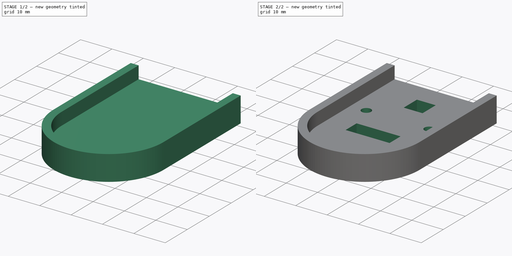
[diagram: build sequence overview — one tinted view per stage of 2, left to right]
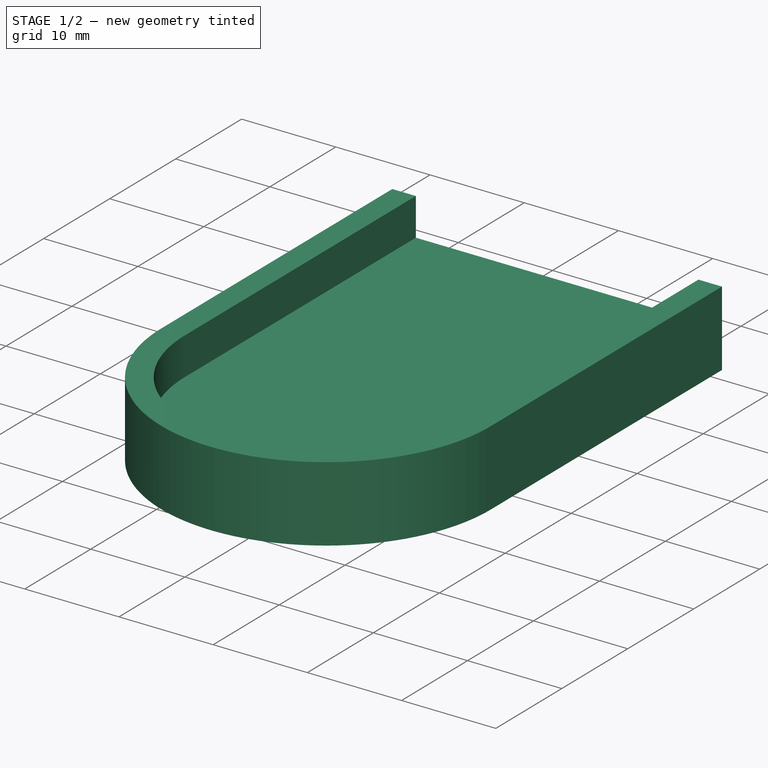
[diagram: stage 1 of 2 — iso view after this stage's code; geometry added in this stage tinted green]
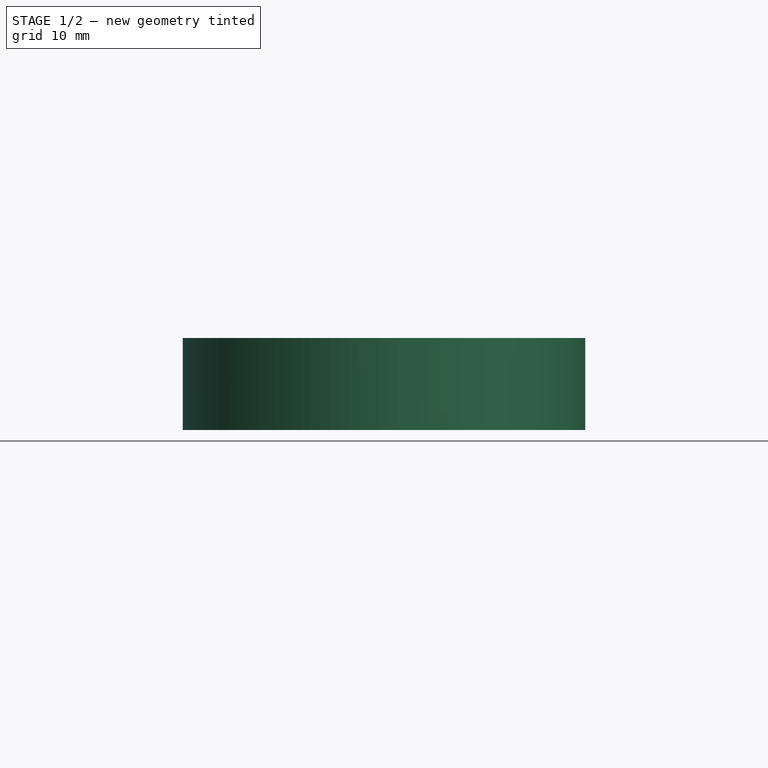
[diagram: stage 1 of 2 — front view after this stage's code; geometry added in this stage tinted green]
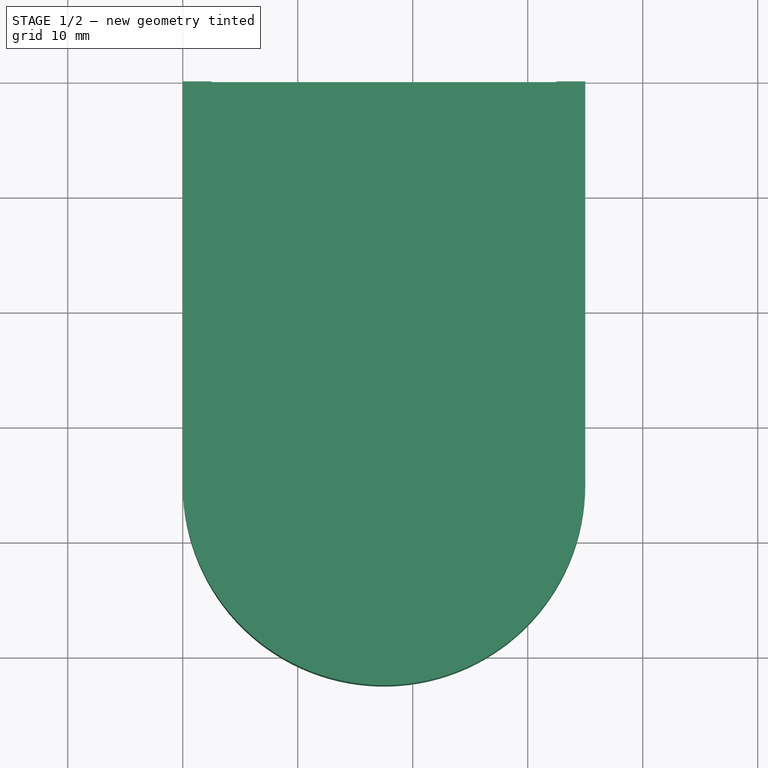
[diagram: stage 1 of 2 — top view after this stage's code; geometry added in this stage tinted green]
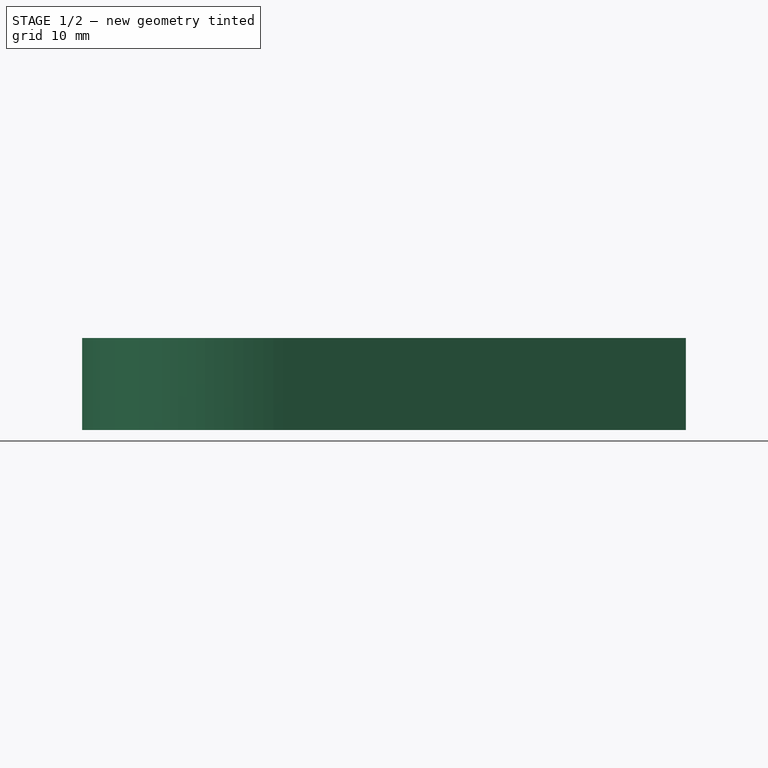
[diagram: stage 1 of 2 — right view after this stage's code; geometry added in this stage tinted green]
FCSTD DOCUMENT  (FreeCAD 0.18.4R)
Label: Podest
License: All rights reserved
LicenseURL: http://en.wikipedia.org/wiki/All_rights_reserved
objects: Sketcher::SketchObject×3, PartDesign::Pocket×2, PartDesign::Pad×1, PartDesign::Body×1
note: 10 computed .brp shape members not serialized (recipe doc carries the construction recipe); baked Part::Feature solids carry a one-line shape summary decoded from their .brp

FEATURE [Sketcher::SketchObject] Sketch
  MapMode = 5
  Support = -> [XY_Plane]
  sketch-geometry (5):
    g0: LineSegment StartX=10 StartY=80 StartZ=0 EndX=10 EndY=80.0001 EndZ=0
    g1: LineSegment StartX=10 StartY=80.0001 StartZ=0 EndX=45 EndY=80.0001 EndZ=0
    g2: LineSegment StartX=45 StartY=80.0001 StartZ=0 EndX=45 EndY=45.0001 EndZ=0
    g3: ArcOfCircle CenterX=27.5 CenterY=45 CenterZ=0 NormalX=0 NormalY=0 NormalZ=1 AngleXU=0 Radius=17.5 StartAngle=3.1416 EndAngle=6.28319
    g4: LineSegment StartX=10 StartY=45 StartZ=0 EndX=10 EndY=80 EndZ=0
  constraints (15):
    c: Coincident(g0,g1)
    c: Coincident(g1,g2)
    c: Tangent(g2,g3) = 1.5708
    c: Coincident(g3,g4)
    c: Coincident(g4,g0)
    c: Horizontal(g1)
    c: Vertical(g2)
    c: Vertical(g4)
    c: DistanceX(g-1,g3) = 10
    c: DistanceY(g-1,g3) = 45
    c: Angle(g3) = 3.14159
    c: Vertical(g0)
    c: DistanceX(g1,g1) = 35
    c: Distance(g2) = 35
    c: Distance(g4) = 35
FEATURE [PartDesign::Pad] Pad
  Length = 8
  Length2 = 100
  Profile = -> Sketch
  Type = 0
FEATURE [Sketcher::SketchObject] Sketch001
  ExternalGeometry = -> [Pad]
  MapMode = 5
  Placement = pos=(0,0,8) rot=(0,0,1;0rad)
  Support = -> [Pad]
  sketch-geometry (4):
    g0: LineSegment StartX=12.5 StartY=80.0001 StartZ=0 EndX=12.5 EndY=45 EndZ=0
    g1: ArcOfCircle CenterX=27.5 CenterY=45 CenterZ=0 NormalX=0 NormalY=0 NormalZ=1 AngleXU=0 Radius=15 StartAngle=3.14159 EndAngle=6.28319
    g2: LineSegment StartX=42.5 StartY=45.0001 StartZ=0 EndX=42.5 EndY=80.0001 EndZ=0
    g3: LineSegment StartX=42.5 StartY=80.0001 StartZ=0 EndX=12.5 EndY=80.0001 EndZ=0
  constraints (12):
    c: Tangent(g0,g1) = -1.5708
    c: Coincident(g1,g2)
    c: Coincident(g2,g3)
    c: Coincident(g3,g0)
    c: DistanceX(g-4,g0) = 2.5
    c: Horizontal(g0,g-3)
    c: Horizontal(g1,g-5)
    c: DistanceX(g2,g-5) = 2.5
    c: Vertical(g0)
    c: Vertical(g2)
    c: Horizontal(g3)
    c: DistanceY(g0,g-4) = 0
FEATURE [PartDesign::Pocket] Pocket
  BaseFeature = -> Pad
  Length = 4
  Length2 = 100
  Profile = -> Sketch001
  Type = 0
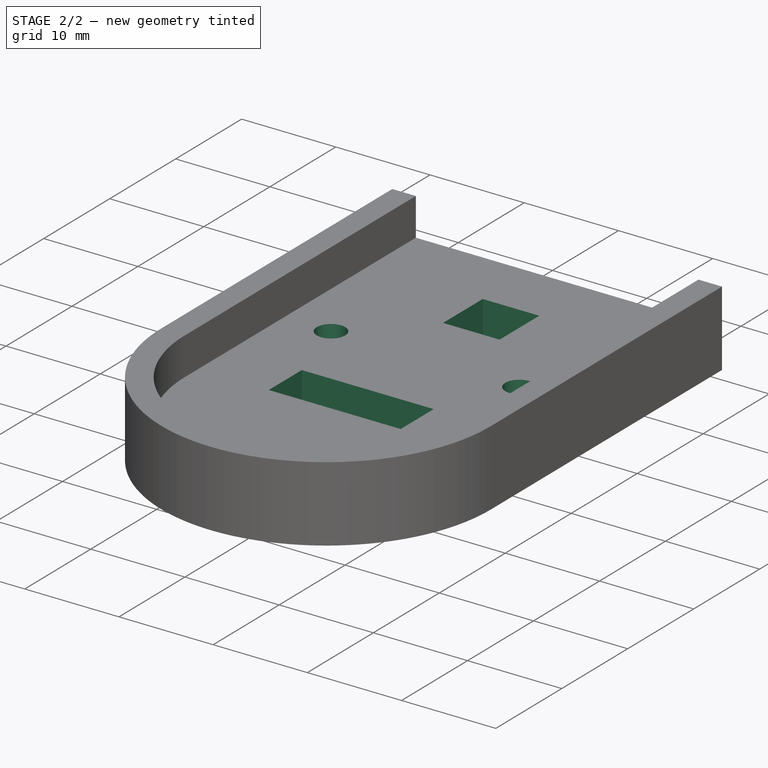
[diagram: stage 2 of 2 — iso view after this stage's code; geometry added in this stage tinted green]
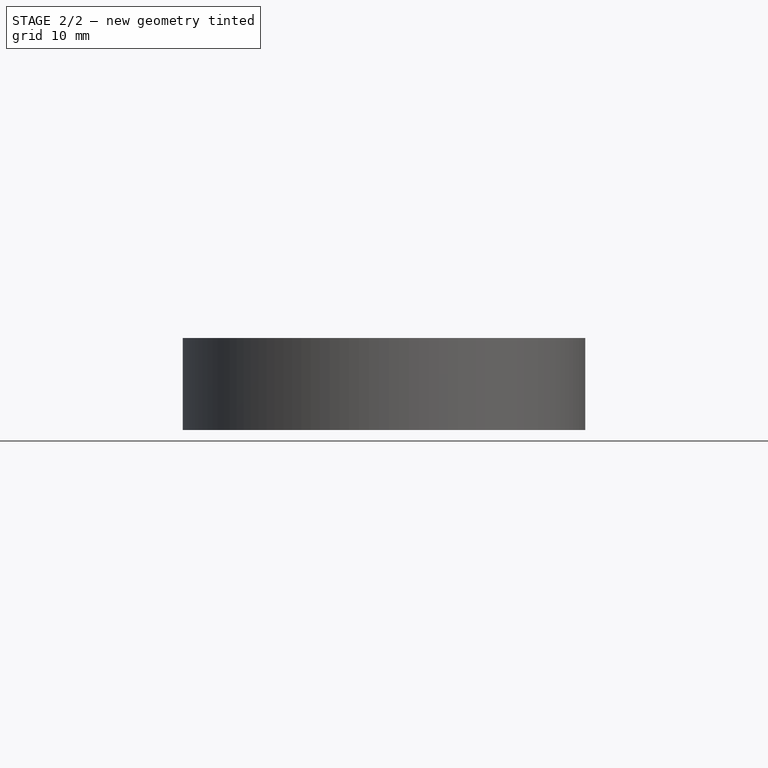
[diagram: stage 2 of 2 — front view after this stage's code; geometry added in this stage tinted green]
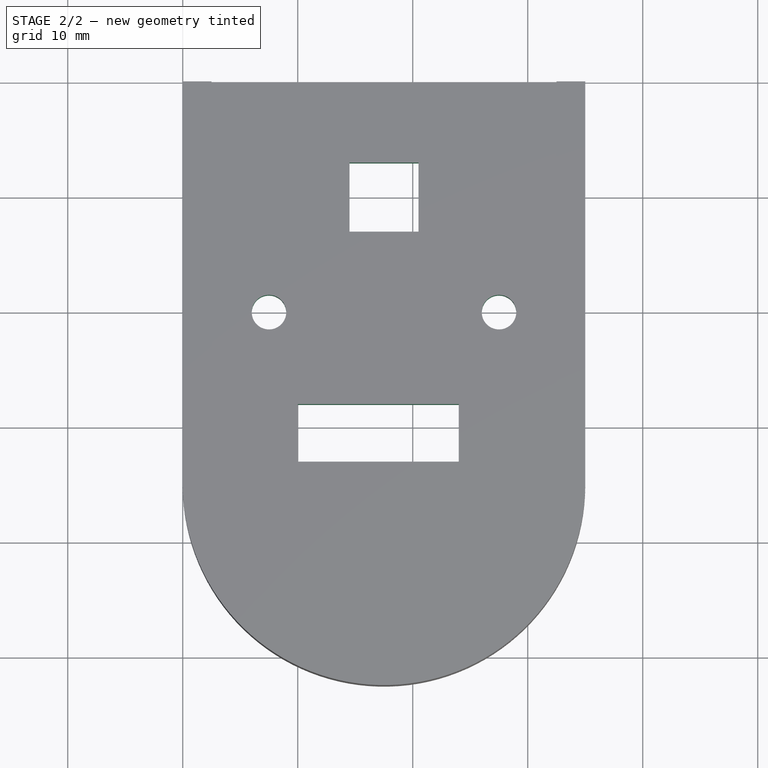
[diagram: stage 2 of 2 — top view after this stage's code; geometry added in this stage tinted green]
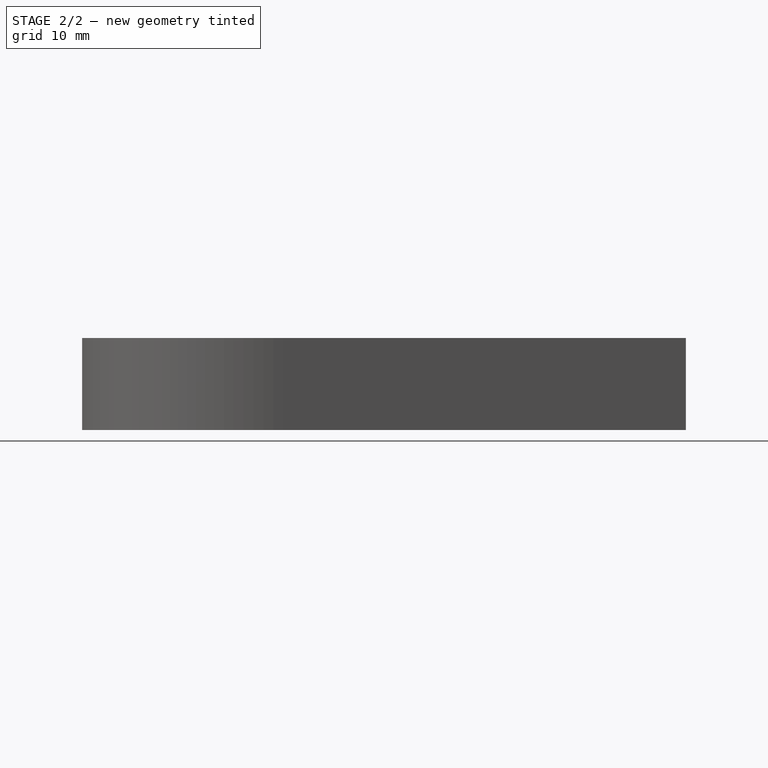
[diagram: stage 2 of 2 — right view after this stage's code; geometry added in this stage tinted green]
FEATURE [Sketcher::SketchObject] Sketch002
  ExternalGeometry = -> [Pocket]
  MapMode = 5
  Placement = pos=(0,0,4) rot=(0,0,1;0rad)
  Support = -> [Pocket]
  sketch-geometry (10):
    g0: Circle CenterX=17.5 CenterY=60.0001 CenterZ=0 NormalX=0 NormalY=0 NormalZ=1 AngleXU=0 Radius=1.5
    g1: Circle CenterX=37.5 CenterY=60.0001 CenterZ=0 NormalX=0 NormalY=0 NormalZ=1 AngleXU=0 Radius=1.5
    g2: LineSegment StartX=20 StartY=52.0001 StartZ=0 EndX=34 EndY=52.0001 EndZ=0
    g3: LineSegment StartX=34 StartY=52.0001 StartZ=0 EndX=34 EndY=47.0001 EndZ=0
    g4: LineSegment StartX=34 StartY=47.0001 StartZ=0 EndX=20 EndY=47.0001 EndZ=0
    g5: LineSegment StartX=20 StartY=47.0001 StartZ=0 EndX=20 EndY=52.0001 EndZ=0
    g6: LineSegment StartX=24.5 StartY=73.0001 StartZ=0 EndX=30.5 EndY=73.0001 EndZ=0
    g7: LineSegment StartX=30.5 StartY=73.0001 StartZ=0 EndX=30.5 EndY=67.0001 EndZ=0
    g8: LineSegment StartX=30.5 StartY=67.0001 StartZ=0 EndX=24.5 EndY=67.0001 EndZ=0
    g9: LineSegment StartX=24.5 StartY=67.0001 StartZ=0 EndX=24.5 EndY=73.0001 EndZ=0
  constraints (30):
    c: Radius(g1) = 1.5
    c: Radius(g0) = 1.5
    c: DistanceX(g0,g1) = 20
    c: DistanceY(g-4,g1) = 15
    c: Horizontal(g0,g1)
    c: DistanceX(g-3,g0) = 5
    c: Coincident(g2,g3)
    c: Coincident(g3,g4)
    c: Coincident(g4,g5)
    c: Coincident(g5,g2)
    c: Horizontal(g2)
    c: Horizontal(g4)
    c: Vertical(g3)
    c: Vertical(g5)
    c: DistanceY(g2,g0) = 8
    c: DistanceY(g4,g2) = 5
    c: DistanceX(g4,g3) = 14
    c: DistanceX(g2,g1) = 3.5
    c: Coincident(g6,g7)
    c: Coincident(g7,g8)
    c: Coincident(g8,g9)
    c: Coincident(g9,g6)
    c: Horizontal(g6)
    c: Horizontal(g8)
    c: Vertical(g7)
    c: Vertical(g9)
    c: DistanceX(g6,g6) = 6
    c: DistanceY(g7,g7) = 6
    c: DistanceX(g7,g1) = 7
    c: DistanceY(g0,g8) = 7
FEATURE [PartDesign::Pocket] Pocket001
  BaseFeature = -> Pocket
  Length = 5
  Length2 = 100
  Profile = -> Sketch002
  Type = 0
FEATURE [PartDesign::Body] Body
  Group = -> [Sketch,Pad,Sketch001,Pocket,Sketch002,Pocket001]
  Origin = -> Origin
  Tip = -> Pocket001
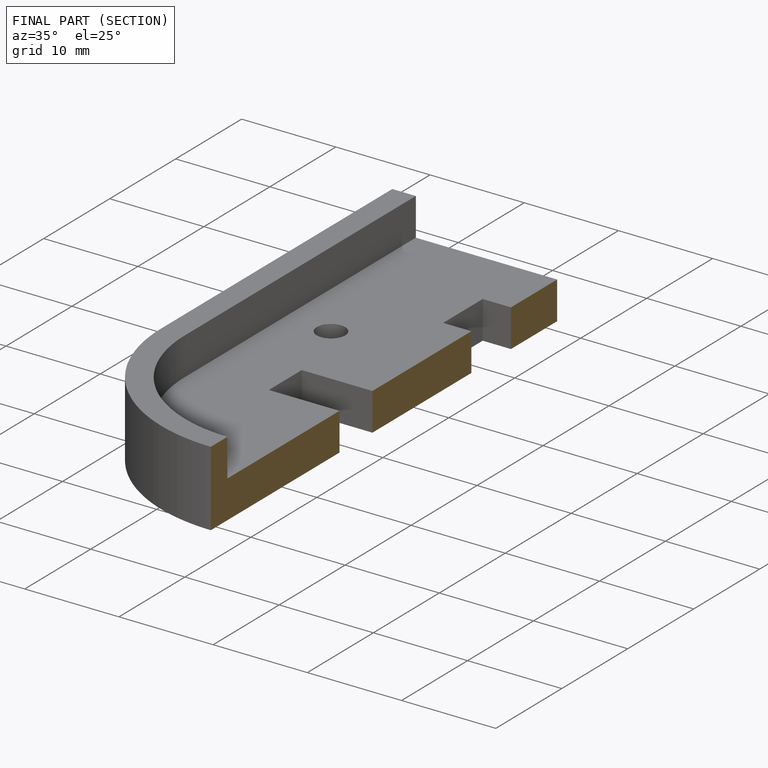
[diagram: finished part — half-section view (interior)]
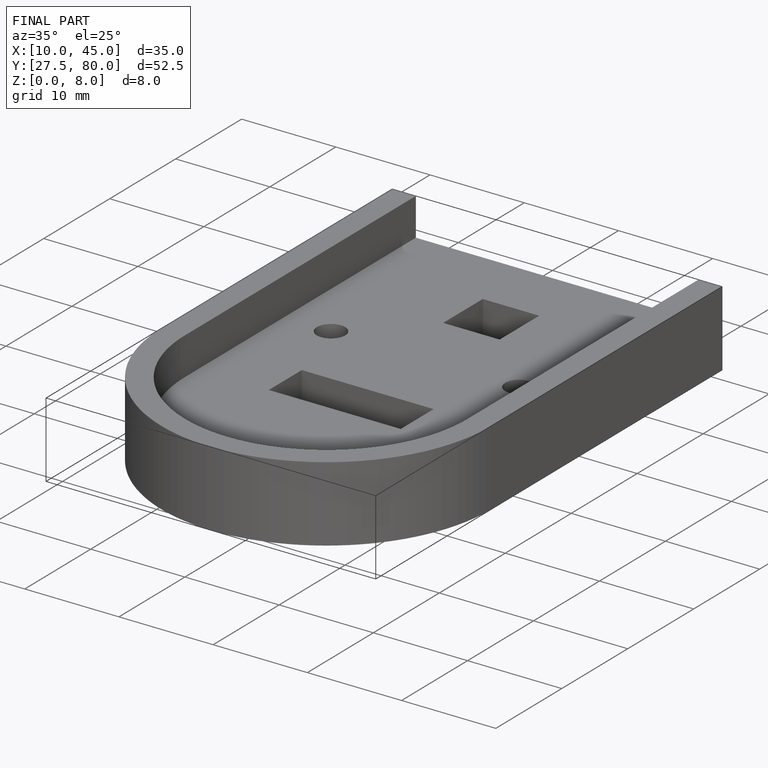
[diagram: finished part — iso view with bounding-box wireframe]
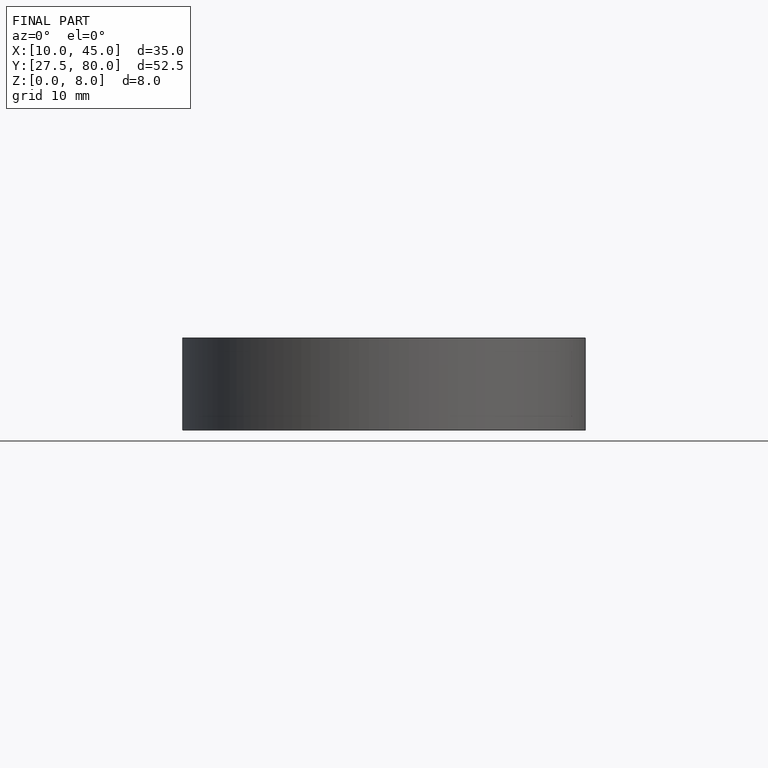
[diagram: finished part — front view with bounding-box wireframe]
